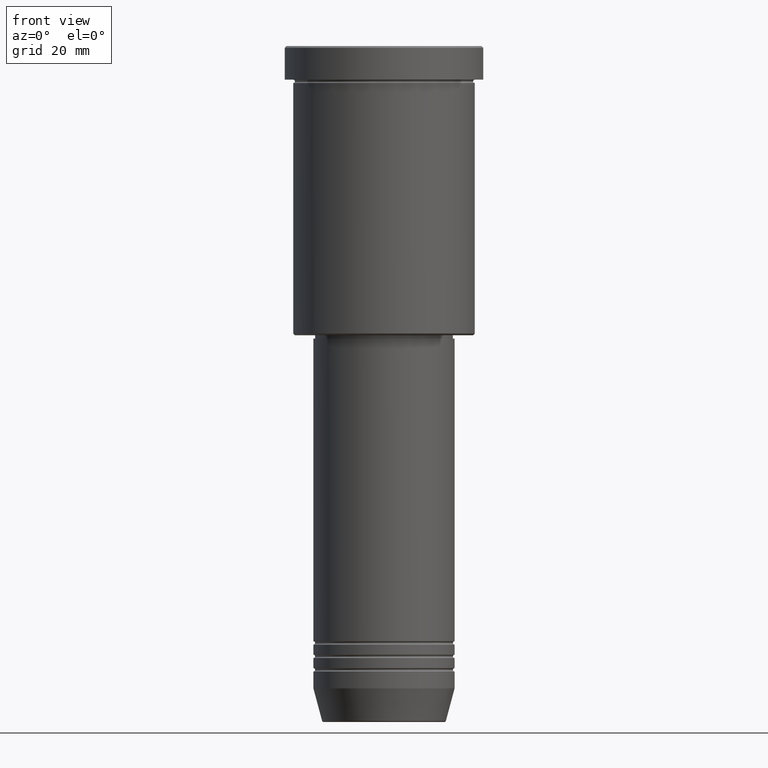
[diagram: clean part render]
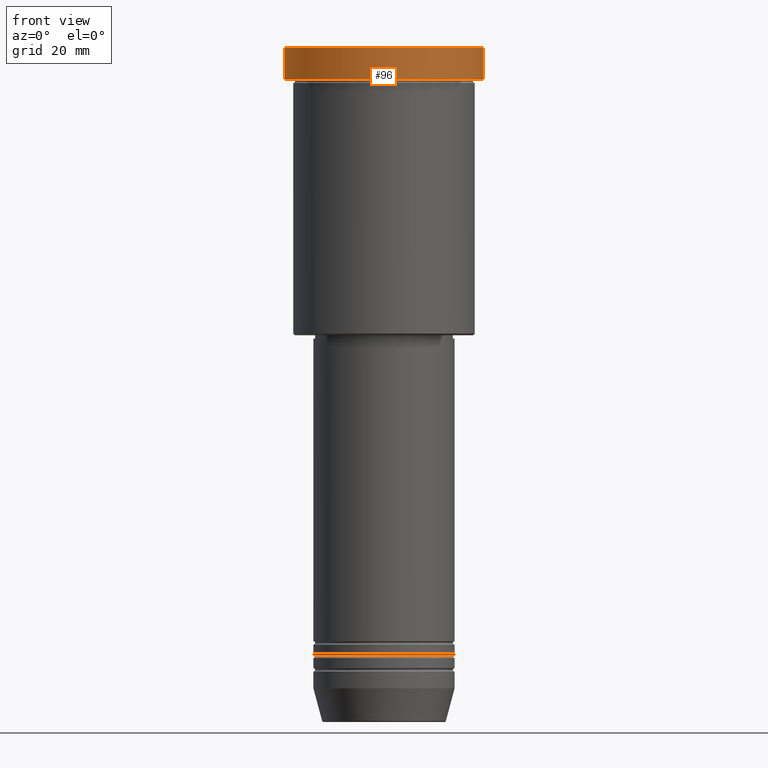
[diagram: same view with one face highlighted and labeled with its STEP entity id]
A machine part, front view. The second image highlights one B-rep face of the part: STEP entity #96.
In plain terms, the highlighted cylindrical surface (partial cylindrical patch) has radius 29.5 mm, axis along (-0, -0, 1).
Its self-contained STEP definition (entity closure, byte-faithful):
#12 = VECTOR ( 'NONE', #137, 1000.000000000000000 ) ;
#30 = DIRECTION ( 'NONE',  ( -0.000000000000000000, -0.000000000000000000, 1.000000000000000000 ) ) ;
#76 = ORIENTED_EDGE ( 'NONE', *, *, #690, .F. ) ;
#96 = ADVANCED_FACE ( 'NONE', ( #518 ), #890, .T. ) ;
#128 = EDGE_CURVE ( 'NONE', #358, #1086, #1003, .T. ) ;
#137 = DIRECTION ( 'NONE',  ( -0.000000000000000000, -0.000000000000000000, 1.000000000000000000 ) ) ;
#158 = ORIENTED_EDGE ( 'NONE', *, *, #128, .T. ) ;
#235 = EDGE_LOOP ( 'NONE', ( #76, #1039, #285, #158 ) ) ;
#282 = DIRECTION ( 'NONE',  ( 0.000000000000000000, 0.000000000000000000, -1.000000000000000000 ) ) ;
#285 = ORIENTED_EDGE ( 'NONE', *, *, #1074, .T. ) ;
#349 = CARTESIAN_POINT ( 'NONE',  ( -29.50000000000000000, 3.612708057484691604E-15, -9.999999999999992895 ) ) ;
#358 = VERTEX_POINT ( 'NONE', #788 ) ;
#378 = AXIS2_PLACEMENT_3D ( 'NONE', #428, #795, #1153 ) ;
#428 = CARTESIAN_POINT ( 'NONE',  ( 0.000000000000000000, 0.000000000000000000, 0.000000000000000000 ) ) ;
#461 = DIRECTION ( 'NONE',  ( 1.000000000000000000, 0.000000000000000000, 0.000000000000000000 ) ) ;
#482 = AXIS2_PLACEMENT_3D ( 'NONE', #1096, #282, #461 ) ;
#488 = AXIS2_PLACEMENT_3D ( 'NONE', #738, #30, #1119 ) ;
#502 = VECTOR ( 'NONE', #566, 1000.000000000000000 ) ;
#518 = FACE_OUTER_BOUND ( 'NONE', #235, .T. ) ;
#566 = DIRECTION ( 'NONE',  ( -0.000000000000000000, -0.000000000000000000, 1.000000000000000000 ) ) ;
#569 = EDGE_CURVE ( 'NONE', #926, #737, #853, .T. ) ;
#636 = CARTESIAN_POINT ( 'NONE',  ( 29.50000000000000000, 0.000000000000000000, -9.999999999999992895 ) ) ;
#690 = EDGE_CURVE ( 'NONE', #926, #1086, #691, .T. ) ;
#691 = LINE ( 'NONE', #1038, #12 ) ;
#729 = CARTESIAN_POINT ( 'NONE',  ( 29.50000000000000000, 0.000000000000000000, 0.000000000000000000 ) ) ;
#737 = VERTEX_POINT ( 'NONE', #636 ) ;
#738 = CARTESIAN_POINT ( 'NONE',  ( 0.000000000000000000, 0.000000000000000000, -9.999999999999992895 ) ) ;
#746 = LINE ( 'NONE', #729, #502 ) ;
#788 = CARTESIAN_POINT ( 'NONE',  ( 29.50000000000000000, 0.000000000000000000, -0.4999999999999726885 ) ) ;
#795 = DIRECTION ( 'NONE',  ( -0.000000000000000000, -0.000000000000000000, 1.000000000000000000 ) ) ;
#853 = CIRCLE ( 'NONE', #488, 29.50000000000000000 ) ;
#890 = CYLINDRICAL_SURFACE ( 'NONE', #378, 29.50000000000000000 ) ;
#926 = VERTEX_POINT ( 'NONE', #349 ) ;
#1003 = CIRCLE ( 'NONE', #482, 29.50000000000000000 ) ;
#1038 = CARTESIAN_POINT ( 'NONE',  ( -29.50000000000000000, 3.612708057484691604E-15, 0.000000000000000000 ) ) ;
#1039 = ORIENTED_EDGE ( 'NONE', *, *, #569, .T. ) ;
#1074 = EDGE_CURVE ( 'NONE', #737, #358, #746, .T. ) ;
#1086 = VERTEX_POINT ( 'NONE', #1115 ) ;
#1096 = CARTESIAN_POINT ( 'NONE',  ( 0.000000000000000000, 0.000000000000000000, -0.4999999999999726885 ) ) ;
#1115 = CARTESIAN_POINT ( 'NONE',  ( -29.50000000000000000, 3.612708057484691604E-15, -0.4999999999999726885 ) ) ;
#1119 = DIRECTION ( 'NONE',  ( 1.000000000000000000, 0.000000000000000000, 0.000000000000000000 ) ) ;
#1153 = DIRECTION ( 'NONE',  ( 1.000000000000000000, 0.000000000000000000, 0.000000000000000000 ) ) ;